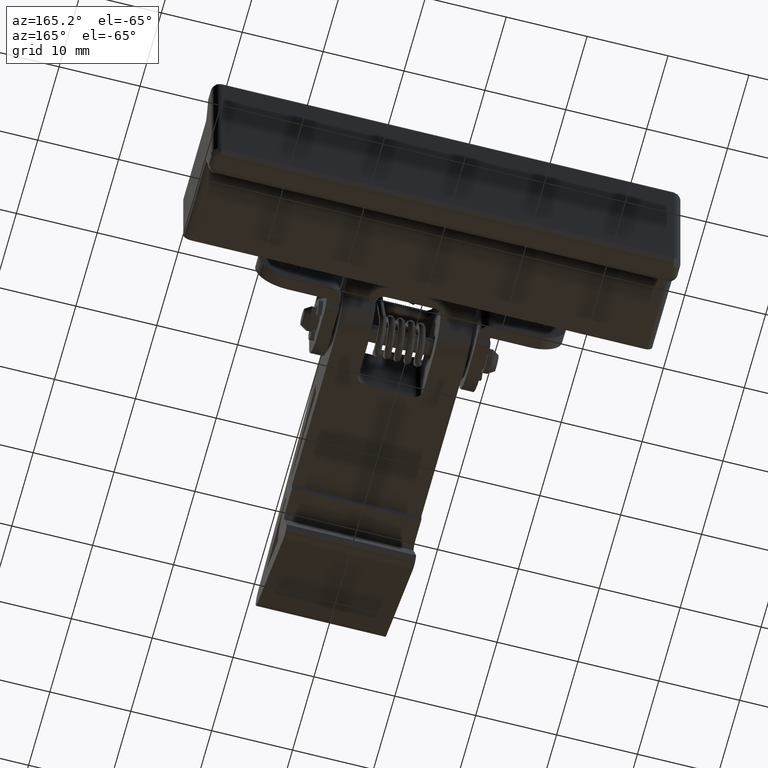
[diagram: clean part render]
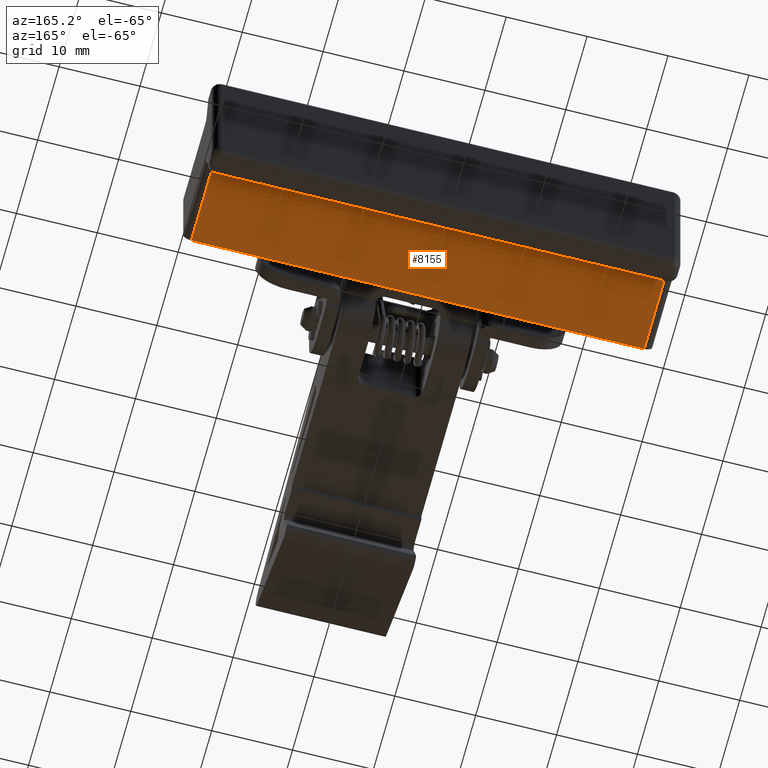
[diagram: same view with one face highlighted and labeled with its STEP entity id]
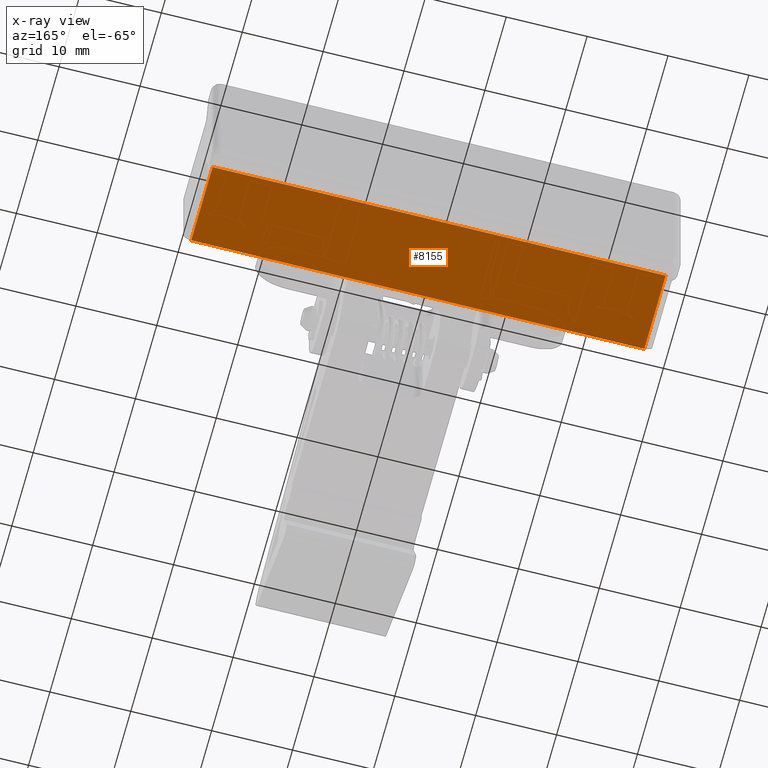
[diagram: x-ray of the same camera — body ghosted, the highlighted face saturated]
A machine part, auxiliary view. The second image highlights one B-rep face of the part: STEP entity #8155.
The next image is the same camera in x-ray: the body ghosted, the highlighted face saturated — about 0% of this face is hidden behind the body in this view.
In plain terms, the highlighted face is a freeform B-spline surface patch.
Its self-contained STEP definition (entity closure, byte-faithful):
#6621=CARTESIAN_POINT('',(-28.0,18.600001574462890,-5.0));
#6622=VERTEX_POINT('',#6621);
#6790=CARTESIAN_POINT('',(-28.0,8.600001574462887,-5.0));
#6791=VERTEX_POINT('',#6790);
#6808=CARTESIAN_POINT('',(-28.0,8.600001574462887,-5.0));
#6809=CARTESIAN_POINT('',(-28.0,18.600001574462890,-5.0));
#6810=QUASI_UNIFORM_CURVE('',1,(#6808,#6809),.UNSPECIFIED.,.F.,.U.);
#6811=EDGE_CURVE('',#6791,#6622,#6810,.T.);
#6871=CARTESIAN_POINT('',(28.0,18.600001574462890,-5.0));
#6872=VERTEX_POINT('',#6871);
#6956=CARTESIAN_POINT('',(28.0,8.600001574462887,-5.0));
#6957=VERTEX_POINT('',#6956);
#6971=CARTESIAN_POINT('',(28.0,18.600001574462890,-5.0));
#6972=CARTESIAN_POINT('',(28.0,8.600001574462887,-5.0));
#6973=QUASI_UNIFORM_CURVE('',1,(#6971,#6972),.UNSPECIFIED.,.F.,.U.);
#6974=EDGE_CURVE('',#6872,#6957,#6973,.T.);
#8127=CARTESIAN_POINT('',(28.0,18.600001574462890,-5.0));
#8128=CARTESIAN_POINT('',(-28.0,18.600001574462890,-5.0));
#8129=QUASI_UNIFORM_CURVE('',1,(#8127,#8128),.UNSPECIFIED.,.F.,.U.);
#8130=EDGE_CURVE('',#6872,#6622,#8129,.T.);
#8140=CARTESIAN_POINT('',(-30.797199891461140,19.099501555080959,-5.0));
#8141=CARTESIAN_POINT('',(-30.797199891461140,8.100501325623917,-5.0));
#8142=CARTESIAN_POINT('',(30.797201393498192,19.099501555080959,-5.0));
#8143=CARTESIAN_POINT('',(30.797201393498192,8.100501325623917,-5.0));
#8144=B_SPLINE_SURFACE_WITH_KNOTS('',1,1,((#8140,#8142),(#8141,#8143)),.UNSPECIFIED.,.F.,.F.,.U.,(2,2),(2,2),(0.0,10.999000229457049),(0.0,61.594401284959332),.UNSPECIFIED.);
#8145=ORIENTED_EDGE('',*,*,#8130,.F.);
#8146=ORIENTED_EDGE('',*,*,#6974,.T.);
#8147=CARTESIAN_POINT('',(28.0,8.600001574462887,-5.0));
#8148=CARTESIAN_POINT('',(-28.0,8.600001574462887,-5.0));
#8149=QUASI_UNIFORM_CURVE('',1,(#8147,#8148),.UNSPECIFIED.,.F.,.U.);
#8150=EDGE_CURVE('',#6957,#6791,#8149,.T.);
#8151=ORIENTED_EDGE('',*,*,#8150,.T.);
#8152=ORIENTED_EDGE('',*,*,#6811,.T.);
#8153=EDGE_LOOP('',(#8145,#8146,#8151,#8152));
#8154=FACE_OUTER_BOUND('',#8153,.T.);
#8155=ADVANCED_FACE('',(#8154),#8144,.F.);